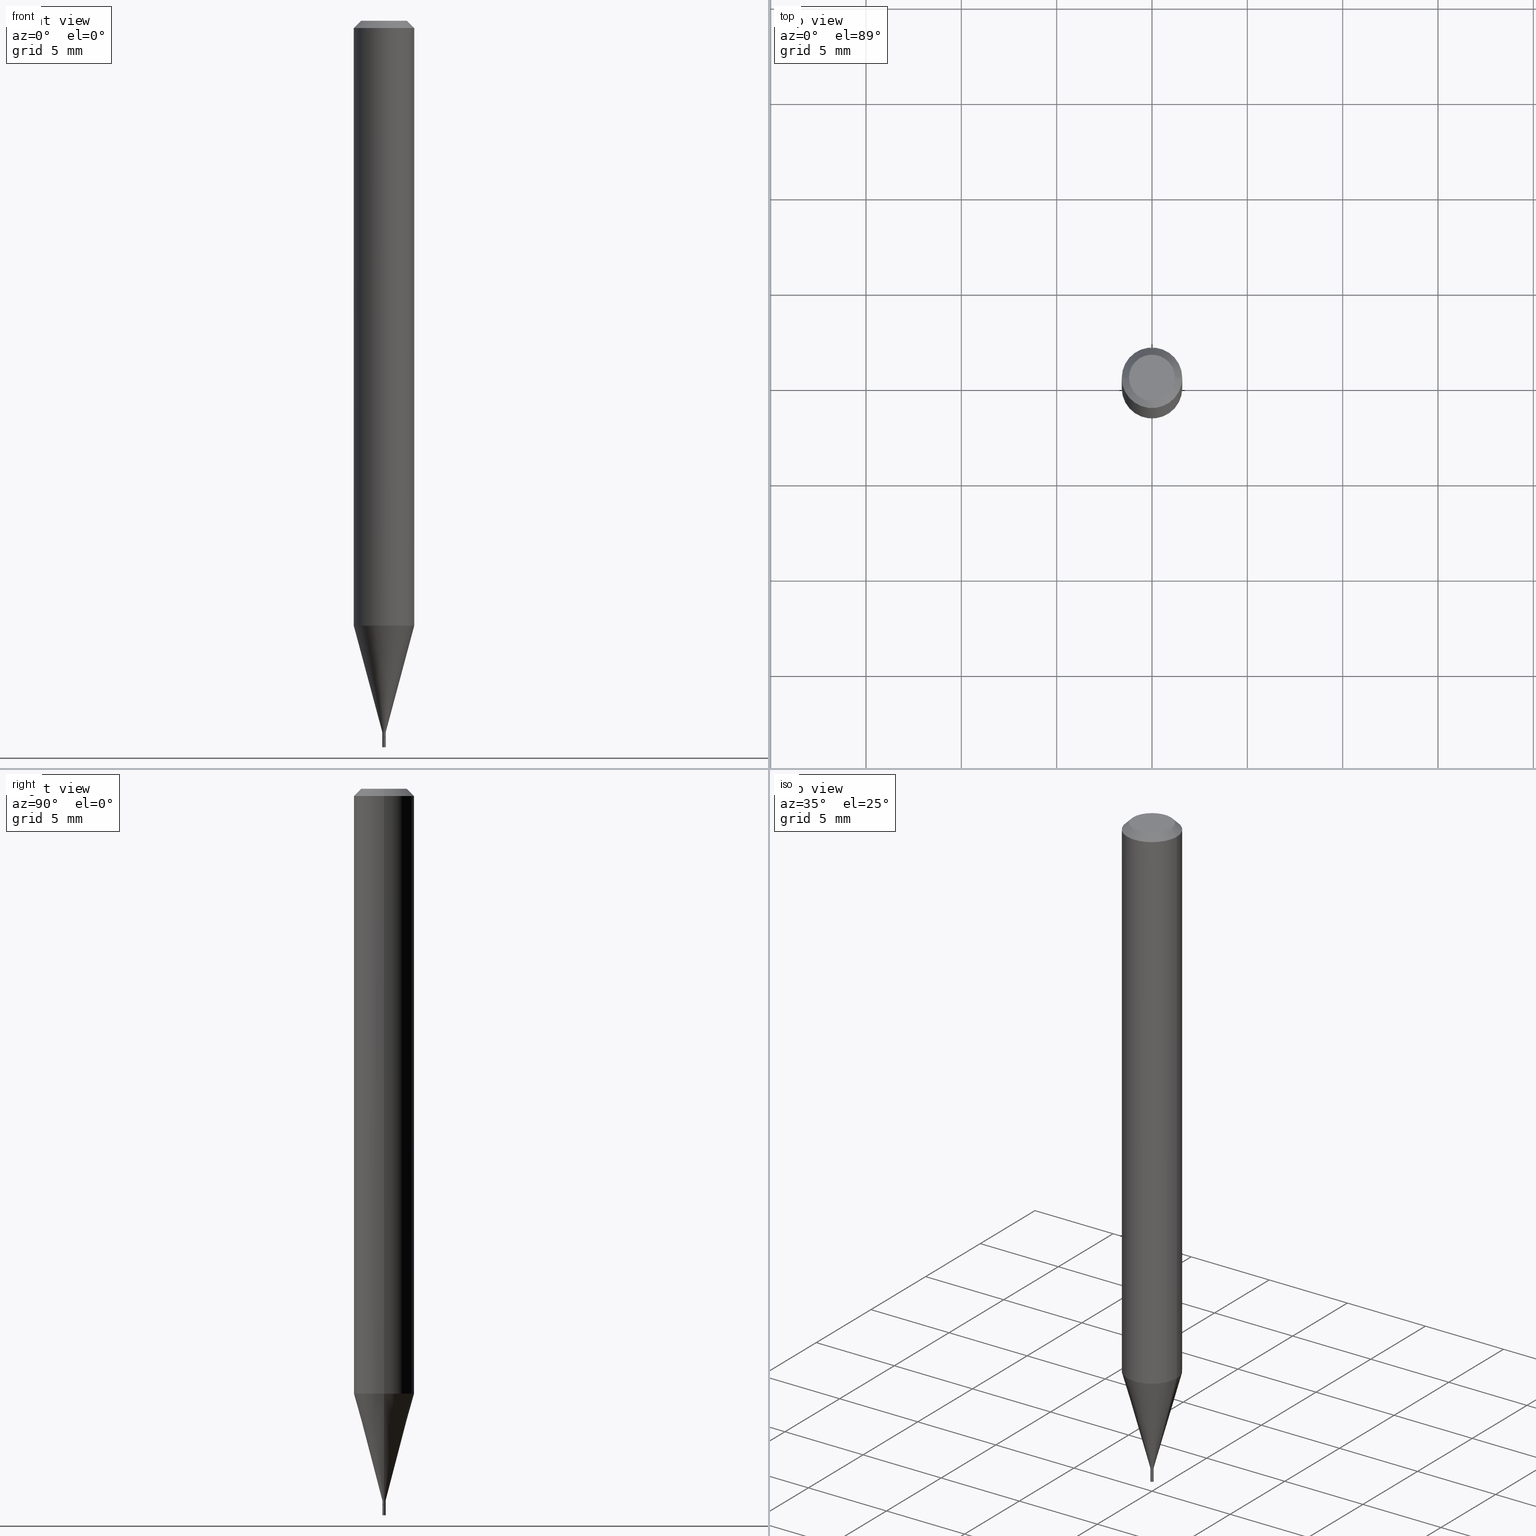
[diagram: canonical four-view strip — front | top / right | iso, engineering-drawing reading convention]
A machine part, canonical four-view strip (front | top / right | iso — engineering-drawing reading convention). The complete STEP part file that produces these views, byte-faithful:
ISO-10303-21;
HEADER;
FILE_DESCRIPTION (( 'STEP AP203' ),
    '1' );
FILE_NAME ('02277.STEP',
    '2024-03-18T19:59:58',
    ( '' ),
    ( '' ),
    'SwSTEP 2.0',
    'SolidWorks 2023',
    '' );
FILE_SCHEMA (( 'CONFIG_CONTROL_DESIGN' ));
ENDSEC;

DATA;
#1 = SECURITY_CLASSIFICATION_LEVEL ( 'unclassified' ) ;
#2 = CARTESIAN_POINT ( 'NONE',  ( 3.616848364347817323E-29, -5.163900900149012660E-15, -1.479000000000000092 ) ) ;
#3 = CLOSED_SHELL ( 'NONE', ( #387, #457, #172, #311 ) ) ;
#4 = EDGE_CURVE ( 'NONE', #46, #22, #202, .T. ) ;
#5 = CIRCLE ( 'NONE', #188, 0.06250000000000000000 ) ;
#6 = LOCAL_TIME ( 15, 59, 58.00000000000000000, #356 ) ;
#7 = DATE_AND_TIME ( #461, #295 ) ;
#8 = DIRECTION ( 'NONE',  ( 1.000000000000000000, -6.982962677686266711E-15, 4.876176775795935793E-29 ) ) ;
#9 = CARTESIAN_POINT ( 'NONE',  ( -0.003500000000000000507, -5.175692458455261890E-15, -1.479000000000000092 ) ) ;
#10 = ORIENTED_EDGE ( 'NONE', *, *, #278, .F. ) ;
#11 = DIRECTION ( 'NONE',  ( -2.445468806185136597E-29, 3.491481338843145583E-15, 1.000000000000000000 ) ) ;
#12 = ORIENTED_EDGE ( 'NONE', *, *, #222, .T. ) ;
#13 = CONICAL_SURFACE ( 'NONE', #393, 0.003499999999999922010, 0.2617993877991500740 ) ;
#14 = VECTOR ( 'NONE', #62, 39.37007874015748143 ) ;
#15 = DIRECTION ( 'NONE',  ( -0.7071067811865645591, 7.493145998870415691E-15, 0.7071067811865304753 ) ) ;
#16 = PRODUCT_DEFINITION_SHAPE ( 'NONE', 'NONE',  #89 ) ;
#17 = APPROVAL ( #286, 'UNSPECIFIED' ) ;
#18 = DIRECTION ( 'NONE',  ( -1.000000000000000000, 6.982962677686265922E-15, -4.876176775795935793E-29 ) ) ;
#19 = ORIENTED_EDGE ( 'NONE', *, *, #228, .T. ) ;
#20 = FACE_OUTER_BOUND ( 'NONE', #123, .T. ) ;
#21 = ORIENTED_EDGE ( 'NONE', *, *, #350, .T. ) ;
#22 = VERTEX_POINT ( 'NONE', #200 ) ;
#23 = DIRECTION ( 'NONE',  ( 1.000000000000000000, -6.982962677686266711E-15, 0.000000000000000000 ) ) ;
#24 = CC_DESIGN_DATE_AND_TIME_ASSIGNMENT ( #33, #40, ( #272 ) ) ;
#25 = ORIENTED_EDGE ( 'NONE', *, *, #97, .T. ) ;
#26 = EDGE_CURVE ( 'NONE', #413, #46, #168, .T. ) ;
#27 =( NAMED_UNIT ( * ) PLANE_ANGLE_UNIT ( ) SI_UNIT ( $, .RADIAN. ) );
#28 = EDGE_LOOP ( 'NONE', ( #10, #297, #292, #207 ) ) ;
#29 = AXIS2_PLACEMENT_3D ( 'NONE', #118, #317, #355 ) ;
#30 = AXIS2_PLACEMENT_3D ( 'NONE', #131, #195, #86 ) ;
#31 = PERSON_AND_ORGANIZATION_ROLE ( 'design_owner' ) ;
#32 = ADVANCED_FACE ( 'NONE', ( #451 ), #34, .T. ) ;
#33 = DATE_AND_TIME ( #288, #263 ) ;
#34 = CONICAL_SURFACE ( 'NONE', #270, 0.003000000000000000496, 0.7853981633974723708 ) ;
#35 = DIRECTION ( 'NONE',  ( -2.445468806185136597E-29, 3.491481338843145583E-15, 1.000000000000000000 ) ) ;
#36 =( GEOMETRIC_REPRESENTATION_CONTEXT ( 3 ) GLOBAL_UNCERTAINTY_ASSIGNED_CONTEXT ( ( #70 ) ) GLOBAL_UNIT_ASSIGNED_CONTEXT ( ( #108, #27, #140 ) ) REPRESENTATION_CONTEXT ( 'NONE', 'WORKASPACE' ) );
#37 = CC_DESIGN_APPROVAL ( #276, ( #102 ) ) ;
#38 = APPLICATION_PROTOCOL_DEFINITION ( 'international standard', 'config_control_design', 1994, #399 ) ;
#39 = CARTESIAN_POINT ( 'NONE',  ( -0.04749999999999999362, 3.578768372314182896E-16, -1.582279719538970160E-15 ) ) ;
#40 = DATE_TIME_ROLE ( 'classification_date' ) ;
#41 = FACE_OUTER_BOUND ( 'NONE', #190, .T. ) ;
#42 = EDGE_LOOP ( 'NONE', ( #358, #240, #332, #404 ) ) ;
#43 = CALENDAR_DATE ( 2024, 18, 3 ) ;
#44 = LINE ( 'NONE', #323, #109 ) ;
#45 = CONICAL_SURFACE ( 'NONE', #363, 0.06250000000000000000, 0.7853981633975011256 ) ;
#46 = VERTEX_POINT ( 'NONE', #221 ) ;
#47 = DIRECTION ( 'NONE',  ( -2.445468806185136877E-29, 3.491481338843145188E-15, 1.000000000000000000 ) ) ;
#48 = LINE ( 'NONE', #96, #255 ) ;
#49 = CARTESIAN_POINT ( 'NONE',  ( 0.000000000000000000, 0.000000000000000000, 0.000000000000000000 ) ) ;
#50 = EDGE_CURVE ( 'NONE', #435, #22, #125, .T. ) ;
#51 = VERTEX_POINT ( 'NONE', #252 ) ;
#52 = EDGE_CURVE ( 'NONE', #458, #324, #184, .T. ) ;
#53 = DIRECTION ( 'NONE',  ( 1.000000000000000000, -6.982962677686347174E-15, 0.000000000000000000 ) ) ;
#54 = ORIENTED_EDGE ( 'NONE', *, *, #350, .F. ) ;
#55 = DIRECTION ( 'NONE',  ( -2.445468806185136597E-29, 3.491481338843145583E-15, 1.000000000000000000 ) ) ;
#56 = ADVANCED_FACE ( 'NONE', ( #41 ), #429, .T. ) ;
#57 = ORIENTED_EDGE ( 'NONE', *, *, #147, .F. ) ;
#58 = FACE_OUTER_BOUND ( 'NONE', #160, .T. ) ;
#59 = ORIENTED_EDGE ( 'NONE', *, *, #386, .T. ) ;
#60 = AXIS2_PLACEMENT_3D ( 'NONE', #383, #64, #208 ) ;
#61 = APPROVAL_PERSON_ORGANIZATION ( #257, #276, #253 ) ;
#62 = DIRECTION ( 'NONE',  ( -2.445468806185136877E-29, 3.491481338843145188E-15, 1.000000000000000000 ) ) ;
#63 = ORIENTED_EDGE ( 'NONE', *, *, #269, .T. ) ;
#64 = DIRECTION ( 'NONE',  ( 0.000000000000000000, 0.000000000000000000, 1.000000000000000000 ) ) ;
#65 = ORIENTED_EDGE ( 'NONE', *, *, #228, .F. ) ;
#66 =( LENGTH_UNIT ( ) NAMED_UNIT ( * ) SI_UNIT ( $, .METRE. ) );
#67 = AXIS2_PLACEMENT_3D ( 'NONE', #186, #352, #289 ) ;
#68 = DIRECTION ( 'NONE',  ( 1.000000000000000000, -6.982962677686266711E-15, 4.876176775795935232E-29 ) ) ;
#69 = AXIS2_PLACEMENT_3D ( 'NONE', #274, #163, #167 ) ;
#70 = UNCERTAINTY_MEASURE_WITH_UNIT (LENGTH_MEASURE( 1.000000000000000082E-05 ), #108, 'distance_accuracy_value', 'NONE');
#71 = CARTESIAN_POINT ( 'NONE',  ( -0.003500000000000000507, 2.486899575160351010E-17, -1.721627281589217151E-31 ) ) ;
#72 = APPROVAL_DATE_TIME ( #7, #74 ) ;
#73 = DIRECTION ( 'NONE',  ( -2.445468806185136877E-29, 3.491481338843145188E-15, 1.000000000000000000 ) ) ;
#74 = APPROVAL ( #312, 'UNSPECIFIED' ) ;
#75 = DIRECTION ( 'NONE',  ( -2.445468806185136597E-29, 3.491481338843145583E-15, 1.000000000000000000 ) ) ;
#76 = VECTOR ( 'NONE', #203, 39.37007874015748143 ) ;
#77 = ADVANCED_FACE ( 'NONE', ( #79 ), #13, .T. ) ;
#78 = DATE_AND_TIME ( #117, #6 ) ;
#79 = FACE_OUTER_BOUND ( 'NONE', #42, .T. ) ;
#80 = ORIENTED_EDGE ( 'NONE', *, *, #431, .T. ) ;
#81 = DIRECTION ( 'NONE',  ( 1.000000000000000000, -6.982962677686267499E-15, 5.108144071313017768E-29 ) ) ;
#82 = CYLINDRICAL_SURFACE ( 'NONE', #83, 0.003500000000000000507 ) ;
#83 = AXIS2_PLACEMENT_3D ( 'NONE', #402, #254, #357 ) ;
#84 = AXIS2_PLACEMENT_3D ( 'NONE', #227, #189, #360 ) ;
#85 = ORIENTED_EDGE ( 'NONE', *, *, #447, .F. ) ;
#86 = DIRECTION ( 'NONE',  ( 1.000000000000000000, -6.982962677686349541E-15, 0.000000000000000000 ) ) ;
#87 = DIRECTION ( 'NONE',  ( 1.000000000000000000, -6.982962677686266711E-15, 4.876176775795935793E-29 ) ) ;
#88 = VERTEX_POINT ( 'NONE', #464 ) ;
#89 = PRODUCT_DEFINITION ( 'UNKNOWN', '', #102, #409 ) ;
#90 = CARTESIAN_POINT ( 'NONE',  ( 3.053923460138509831E-29, -4.360193327496349299E-15, -1.248809002353436615 ) ) ;
#91 = ORIENTED_EDGE ( 'NONE', *, *, #278, .T. ) ;
#92 = AXIS2_PLACEMENT_3D ( 'NONE', #243, #343, #452 ) ;
#93 = CC_DESIGN_APPROVAL ( #17, ( #272 ) ) ;
#94 = CARTESIAN_POINT ( 'NONE',  ( 3.668203209277704895E-29, -5.237222008264718177E-15, -1.500000000000000222 ) ) ;
#95 = ORIENTED_EDGE ( 'NONE', *, *, #222, .F. ) ;
#96 = CARTESIAN_POINT ( 'NONE',  ( -0.003000000000000000496, -5.142584618076209636E-15, -1.479000000000000092 ) ) ;
#97 = EDGE_CURVE ( 'NONE', #230, #408, #149, .T. ) ;
#98 = VERTEX_POINT ( 'NONE', #9 ) ;
#99 = DIRECTION ( 'NONE',  ( -2.445468806185136597E-29, 3.491481338843145583E-15, 1.000000000000000000 ) ) ;
#100 = EDGE_LOOP ( 'NONE', ( #95, #141, #264, #85 ) ) ;
#101 = AXIS2_PLACEMENT_3D ( 'NONE', #260, #191, #8 ) ;
#102 = PRODUCT_DEFINITION_FORMATION_WITH_SPECIFIED_SOURCE ( 'ANY', '', #234, .NOT_KNOWN. ) ;
#103 = DIRECTION ( 'NONE',  ( -2.438088387897960049E-29, 3.491481338843145188E-15, 1.000000000000000000 ) ) ;
#104 = ORIENTED_EDGE ( 'NONE', *, *, #411, .F. ) ;
#105 = MECHANICAL_CONTEXT ( 'NONE', #428, 'mechanical' ) ;
#106 = CC_DESIGN_PERSON_AND_ORGANIZATION_ASSIGNMENT ( #249, #31, ( #234 ) ) ;
#107 = CARTESIAN_POINT ( 'NONE',  ( -0.06250000000000000000, -1.762193563939435770E-15, -0.01499999999999999944 ) ) ;
#108 =( CONVERSION_BASED_UNIT ( 'INCH', #305 ) LENGTH_UNIT ( ) NAMED_UNIT ( #133 ) );
#109 = VECTOR ( 'NONE', #47, 39.37007874015748143 ) ;
#110 = CARTESIAN_POINT ( 'NONE',  ( 3.668203209277705088E-31, -5.237222008264718399E-17, -0.01499999999999999944 ) ) ;
#111 = CARTESIAN_POINT ( 'NONE',  ( 3.053923460138509831E-29, -4.360193327496349299E-15, -1.248809002353436615 ) ) ;
#112 = APPROVAL_STATUS ( 'not_yet_approved' ) ;
#113 = AXIS2_PLACEMENT_3D ( 'NONE', #248, #423, #68 ) ;
#114 = DIRECTION ( 'NONE',  ( 1.000000000000000000, -6.982962677686270655E-15, 0.000000000000000000 ) ) ;
#115 = AXIS2_PLACEMENT_3D ( 'NONE', #49, #199, #333 ) ;
#116 = ADVANCED_BREP_SHAPE_REPRESENTATION ( '02277', ( #400, #390, #60 ), #36 ) ;
#117 = CALENDAR_DATE ( 2024, 18, 3 ) ;
#118 = CARTESIAN_POINT ( 'NONE',  ( 3.668203209277705088E-31, -5.237222008264718399E-17, -0.01499999999999999944 ) ) ;
#119 = ORIENTED_EDGE ( 'NONE', *, *, #209, .F. ) ;
#120 = EDGE_CURVE ( 'NONE', #324, #416, #236, .T. ) ;
#121 = PERSON_AND_ORGANIZATION ( #247, #462 ) ;
#122 = DIRECTION ( 'NONE',  ( -2.445468806185136597E-29, 3.491481338843145583E-15, 1.000000000000000000 ) ) ;
#123 = EDGE_LOOP ( 'NONE', ( #65, #439 ) ) ;
#124 = DIRECTION ( 'NONE',  ( -2.445468806185136877E-29, 3.491481338843145188E-15, 1.000000000000000000 ) ) ;
#125 = CIRCLE ( 'NONE', #67, 0.003499999999999922010 ) ;
#126 = CC_DESIGN_APPROVAL ( #74, ( #89 ) ) ;
#127 = CC_DESIGN_SECURITY_CLASSIFICATION ( #272, ( #102 ) ) ;
#128 = CARTESIAN_POINT ( 'NONE',  ( -0.003499999999999922010, -5.104117091008977877E-15, -1.469000000000000083 ) ) ;
#129 = CC_DESIGN_PERSON_AND_ORGANIZATION_ASSIGNMENT ( #463, #465, ( #102 ) ) ;
#130 = EDGE_CURVE ( 'NONE', #339, #98, #455, .T. ) ;
#131 = CARTESIAN_POINT ( 'NONE',  ( 3.592393676285966338E-29, -5.128986086760581011E-15, -1.469000000000000083 ) ) ;
#132 = ORIENTED_EDGE ( 'NONE', *, *, #52, .F. ) ;
#133 = DIMENSIONAL_EXPONENTS ( 1.000000000000000000, 0.000000000000000000, 0.000000000000000000, 0.000000000000000000, 0.000000000000000000, 0.000000000000000000, 0.000000000000000000 ) ;
#134 = DIRECTION ( 'NONE',  ( -2.438088387897960049E-29, 3.491481338843145188E-15, 1.000000000000000000 ) ) ;
#135 = VERTEX_POINT ( 'NONE', #39 ) ;
#136 = CIRCLE ( 'NONE', #372, 0.003500000000000000507 ) ;
#137 = CARTESIAN_POINT ( 'NONE',  ( 2.444036937193810177E-17, 0.003499999999994836668, -1.479000000000000092 ) ) ;
#138 = ORIENTED_EDGE ( 'NONE', *, *, #411, .T. ) ;
#139 = ORIENTED_EDGE ( 'NONE', *, *, #147, .T. ) ;
#140 =( NAMED_UNIT ( * ) SI_UNIT ( $, .STERADIAN. ) SOLID_ANGLE_UNIT ( ) );
#141 = ORIENTED_EDGE ( 'NONE', *, *, #347, .T. ) ;
#142 = AXIS2_PLACEMENT_3D ( 'NONE', #298, #266, #331 ) ;
#143 = APPLICATION_PROTOCOL_DEFINITION ( 'international standard', 'config_control_design', 1994, #428 ) ;
#144 = ADVANCED_FACE ( 'NONE', ( #182 ), #45, .T. ) ;
#145 = EDGE_LOOP ( 'NONE', ( #273, #318 ) ) ;
#146 = CARTESIAN_POINT ( 'NONE',  ( -0.06250000000000001388, -3.916104117646285894E-15, -1.248809002353436615 ) ) ;
#147 = EDGE_CURVE ( 'NONE', #51, #435, #392, .T. ) ;
#148 = FACE_OUTER_BOUND ( 'NONE', #329, .T. ) ;
#149 = CIRCLE ( 'NONE', #196, 0.06250000000000000000 ) ;
#150 = AXIS2_PLACEMENT_3D ( 'NONE', #137, #437, #18 ) ;
#151 = PERSON_AND_ORGANIZATION ( #247, #462 ) ;
#152 = CARTESIAN_POINT ( 'NONE',  ( 3.616848364347817323E-29, -5.163900900149012660E-15, -1.479000000000000092 ) ) ;
#153 = DIRECTION ( 'NONE',  ( -2.445468806185136597E-29, 3.491481338843145583E-15, 1.000000000000000000 ) ) ;
#154 = SHAPE_DEFINITION_REPRESENTATION ( #16, #116 ) ;
#155 = CIRCLE ( 'NONE', #456, 0.003500000000000000507 ) ;
#156 = CARTESIAN_POINT ( 'NONE',  ( 3.616848364347817323E-29, -5.163900900149012660E-15, -1.479000000000000092 ) ) ;
#157 = DATE_AND_TIME ( #349, #381 ) ;
#158 = DIRECTION ( 'NONE',  ( 1.000000000000000000, -6.982962677686192558E-15, 0.000000000000000000 ) ) ;
#159 = DIRECTION ( 'NONE',  ( 1.000000000000000000, -6.982962677686331397E-15, 0.000000000000000000 ) ) ;
#160 = EDGE_LOOP ( 'NONE', ( #454, #192 ) ) ;
#161 = FACE_OUTER_BOUND ( 'NONE', #242, .T. ) ;
#162 = AXIS2_PLACEMENT_3D ( 'NONE', #177, #341, #23 ) ;
#163 = DIRECTION ( 'NONE',  ( -2.445468806185136597E-29, 3.491481338843145583E-15, 1.000000000000000000 ) ) ;
#164 = CARTESIAN_POINT ( 'NONE',  ( -0.06250000000000000000, 3.840629472727444916E-16, -0.01499999999999999944 ) ) ;
#165 = CARTESIAN_POINT ( 'NONE',  ( 0.003000000000000000496, -5.184849788182071492E-15, -1.479000000000000092 ) ) ;
#166 = CC_DESIGN_DATE_AND_TIME_ASSIGNMENT ( #157, #226, ( #89 ) ) ;
#167 = DIRECTION ( 'NONE',  ( 1.000000000000000000, -6.982962677686192558E-15, 0.000000000000000000 ) ) ;
#168 = LINE ( 'NONE', #165, #313 ) ;
#169 = DIRECTION ( 'NONE',  ( -2.445468806185136597E-29, 3.491481338843145583E-15, 1.000000000000000000 ) ) ;
#170 = DIRECTION ( 'NONE',  ( -2.445468806185136597E-29, 3.491481338843145583E-15, 1.000000000000000000 ) ) ;
#171 = EDGE_LOOP ( 'NONE', ( #19, #91, #306, #422 ) ) ;
#172 = ADVANCED_FACE ( 'NONE', ( #224 ), #82, .T. ) ;
#173 = DIRECTION ( 'NONE',  ( -2.445468806185136877E-29, 3.491481338843145188E-15, 1.000000000000000000 ) ) ;
#174 = VECTOR ( 'NONE', #173, 39.37007874015748143 ) ;
#175 = CIRCLE ( 'NONE', #440, 0.003499999999999923311 ) ;
#176 = CARTESIAN_POINT ( 'NONE',  ( 0.003500000000000000507, -5.261662377636620016E-15, -1.500000000000000222 ) ) ;
#177 = CARTESIAN_POINT ( 'NONE',  ( 3.668203209277705088E-31, -5.237222008264718399E-17, -0.01499999999999999944 ) ) ;
#178 = COORDINATED_UNIVERSAL_TIME_OFFSET ( 5, 0, .BEHIND. ) ;
#179 = CC_DESIGN_PERSON_AND_ORGANIZATION_ASSIGNMENT ( #223, #397, ( #102 ) ) ;
#180 = COORDINATED_UNIVERSAL_TIME_OFFSET ( 5, 0, .BEHIND. ) ;
#181 = CONICAL_SURFACE ( 'NONE', #211, 0.003000000000000000496, 0.7853981633974723708 ) ;
#182 = FACE_OUTER_BOUND ( 'NONE', #384, .T. ) ;
#183 = PERSON_AND_ORGANIZATION ( #247, #462 ) ;
#184 = LINE ( 'NONE', #315, #217 ) ;
#185 = ADVANCED_FACE ( 'NONE', ( #424 ), #181, .T. ) ;
#186 = CARTESIAN_POINT ( 'NONE',  ( 3.592393676285966338E-29, -5.128986086760581011E-15, -1.469000000000000083 ) ) ;
#187 = PERSON_AND_ORGANIZATION_ROLE ( 'classification_officer' ) ;
#188 = AXIS2_PLACEMENT_3D ( 'NONE', #90, #442, #335 ) ;
#189 = DIRECTION ( 'NONE',  ( 2.438088387897960049E-29, -3.491481338843145188E-15, -1.000000000000000000 ) ) ;
#190 = EDGE_LOOP ( 'NONE', ( #57, #382, #342, #309 ) ) ;
#191 = DIRECTION ( 'NONE',  ( -2.445468806185136597E-29, 3.491481338843145583E-15, 1.000000000000000000 ) ) ;
#192 = ORIENTED_EDGE ( 'NONE', *, *, #209, .T. ) ;
#193 = LINE ( 'NONE', #444, #414 ) ;
#194 = EDGE_CURVE ( 'NONE', #302, #413, #405, .T. ) ;
#195 = DIRECTION ( 'NONE',  ( -2.445468806185136597E-29, 3.491481338843145583E-15, 1.000000000000000000 ) ) ;
#196 = AXIS2_PLACEMENT_3D ( 'NONE', #111, #35, #114 ) ;
#197 = CIRCLE ( 'NONE', #92, 0.04749999999999999362 ) ;
#198 = ORIENTED_EDGE ( 'NONE', *, *, #214, .F. ) ;
#199 = DIRECTION ( 'NONE',  ( -2.445468806185136597E-29, 3.491481338843145583E-15, 1.000000000000000000 ) ) ;
#200 = CARTESIAN_POINT ( 'NONE',  ( 0.003499999999999922010, -5.153426456132482850E-15, -1.469000000000000083 ) ) ;
#201 = FACE_OUTER_BOUND ( 'NONE', #277, .T. ) ;
#202 = LINE ( 'NONE', #374, #174 ) ;
#203 = DIRECTION ( 'NONE',  ( -2.445468806185136877E-29, 3.491481338843145188E-15, 1.000000000000000000 ) ) ;
#204 = ORIENTED_EDGE ( 'NONE', *, *, #214, .T. ) ;
#205 = APPROVAL_PERSON_ORGANIZATION ( #121, #17, #215 ) ;
#206 = DIRECTION ( 'NONE',  ( 0.2588190451025213501, 1.565188264969621968E-15, 0.9659258262890682012 ) ) ;
#207 = ORIENTED_EDGE ( 'NONE', *, *, #362, .F. ) ;
#208 = DIRECTION ( 'NONE',  ( 1.000000000000000000, 0.000000000000000000, 0.000000000000000000 ) ) ;
#209 = EDGE_CURVE ( 'NONE', #98, #339, #155, .T. ) ;
#210 = ORIENTED_EDGE ( 'NONE', *, *, #431, .F. ) ;
#211 = AXIS2_PLACEMENT_3D ( 'NONE', #2, #153, #229 ) ;
#212 = CARTESIAN_POINT ( 'NONE',  ( 3.576687321579069994E-29, -5.368277968210015545E-15, -1.500000000000000222 ) ) ;
#213 = FACE_OUTER_BOUND ( 'NONE', #145, .T. ) ;
#214 = EDGE_CURVE ( 'NONE', #458, #135, #245, .T. ) ;
#215 = APPROVAL_ROLE ( '' ) ;
#216 = PLANE ( 'NONE',  #84 ) ;
#217 = VECTOR ( 'NONE', #316, 39.37007874015748143 ) ;
#218 = PERSON_AND_ORGANIZATION_ROLE ( 'creator' ) ;
#219 = AXIS2_PLACEMENT_3D ( 'NONE', #212, #103, #284 ) ;
#220 = ADVANCED_FACE ( 'NONE', ( #365 ), #216, .F. ) ;
#221 = CARTESIAN_POINT ( 'NONE',  ( 0.003499999999999923311, -5.186595528851492996E-15, -1.478500000000000147 ) ) ;
#222 = EDGE_CURVE ( 'NONE', #408, #416, #44, .T. ) ;
#223 = PERSON_AND_ORGANIZATION ( #247, #462 ) ;
#224 = FACE_OUTER_BOUND ( 'NONE', #279, .T. ) ;
#225 = ORIENTED_EDGE ( 'NONE', *, *, #441, .T. ) ;
#226 = DATE_TIME_ROLE ( 'creation_date' ) ;
#227 = CARTESIAN_POINT ( 'NONE',  ( 3.316907271900976096E-16, 0.04749999999999999362, -9.569852233645332438E-16 ) ) ;
#228 = EDGE_CURVE ( 'NONE', #413, #302, #346, .T. ) ;
#229 = DIRECTION ( 'NONE',  ( 1.000000000000000000, -6.982962677686331397E-15, 0.000000000000000000 ) ) ;
#230 = VERTEX_POINT ( 'NONE', #417 ) ;
#231 = DIRECTION ( 'NONE',  ( -2.445468806185136597E-29, 3.491481338843145583E-15, 1.000000000000000000 ) ) ;
#232 = ORIENTED_EDGE ( 'NONE', *, *, #120, .T. ) ;
#233 = CARTESIAN_POINT ( 'NONE',  ( 0.000000000000000000, 0.000000000000000000, 0.000000000000000000 ) ) ;
#234 = PRODUCT ( '02277', '02277', '', ( #105 ) ) ;
#235 = DIRECTION ( 'NONE',  ( -0.7071067811865848762, 2.468850131082647941E-15, -0.7071067811865101582 ) ) ;
#236 = CIRCLE ( 'NONE', #29, 0.06250000000000000000 ) ;
#237 = VECTOR ( 'NONE', #373, 39.37007874015747433 ) ;
#238 = EDGE_LOOP ( 'NONE', ( #80, #204 ) ) ;
#239 = CARTESIAN_POINT ( 'NONE',  ( 0.000000000000000000, 0.000000000000000000, 0.000000000000000000 ) ) ;
#240 = ORIENTED_EDGE ( 'NONE', *, *, #50, .T. ) ;
#241 = DIRECTION ( 'NONE',  ( 1.000000000000000000, -6.982962677686266711E-15, 4.876176775795935793E-29 ) ) ;
#242 = EDGE_LOOP ( 'NONE', ( #25, #12, #419, #368 ) ) ;
#243 = CARTESIAN_POINT ( 'NONE',  ( 3.869415696791911762E-44, -5.524500113600271674E-30, -1.582279719538967596E-15 ) ) ;
#244 = ORIENTED_EDGE ( 'NONE', *, *, #4, .F. ) ;
#245 = CIRCLE ( 'NONE', #271, 0.04749999999999999362 ) ;
#246 = ORIENTED_EDGE ( 'NONE', *, *, #97, .F. ) ;
#247 = PERSON ( 'UNSPECIFIED', 'UNSPECIFIED', 'UNSPECIFIED', ('UNSPECIFIED'), ('UNSPECIFIED'), ('UNSPECIFIED') ) ;
#248 = CARTESIAN_POINT ( 'NONE',  ( 0.000000000000000000, 0.000000000000000000, 0.000000000000000000 ) ) ;
#249 = PERSON_AND_ORGANIZATION ( #247, #462 ) ;
#250 = VECTOR ( 'NONE', #73, 39.37007874015748143 ) ;
#251 = AXIS2_PLACEMENT_3D ( 'NONE', #380, #99, #420 ) ;
#252 = CARTESIAN_POINT ( 'NONE',  ( -0.003499999999999923311, -5.137286163727988811E-15, -1.478500000000000147 ) ) ;
#253 = APPROVAL_ROLE ( '' ) ;
#254 = DIRECTION ( 'NONE',  ( -2.445468806185136597E-29, 3.491481338843145583E-15, 1.000000000000000000 ) ) ;
#255 = VECTOR ( 'NONE', #15, 39.37007874015748143 ) ;
#256 = DIRECTION ( 'NONE',  ( -2.445468806185136597E-29, 3.491481338843145583E-15, 1.000000000000000000 ) ) ;
#257 = PERSON_AND_ORGANIZATION ( #247, #462 ) ;
#258 = DIRECTION ( 'NONE',  ( -2.445468806185136597E-29, 3.491481338843145583E-15, 1.000000000000000000 ) ) ;
#259 = PERSON_AND_ORGANIZATION ( #247, #462 ) ;
#260 = CARTESIAN_POINT ( 'NONE',  ( 0.000000000000000000, 0.000000000000000000, 0.000000000000000000 ) ) ;
#261 = VECTOR ( 'NONE', #235, 39.37007874015748143 ) ;
#262 = CARTESIAN_POINT ( 'NONE',  ( 0.003500000000000000507, -5.188341269520914499E-15, -1.479000000000000092 ) ) ;
#263 = LOCAL_TIME ( 15, 59, 58.00000000000000000, #351 ) ;
#264 = ORIENTED_EDGE ( 'NONE', *, *, #322, .T. ) ;
#265 = PLANE ( 'NONE',  #150 ) ;
#266 = DIRECTION ( 'NONE',  ( 2.445468806185136597E-29, -3.491481338843145583E-15, -1.000000000000000000 ) ) ;
#267 = EDGE_LOOP ( 'NONE', ( #198, #453, #232, #54 ) ) ;
#268 = CARTESIAN_POINT ( 'NONE',  ( 0.06250000000000000000, -4.888073874380388472E-16, -0.01499999999999999944 ) ) ;
#269 = EDGE_CURVE ( 'NONE', #445, #339, #296, .T. ) ;
#270 = AXIS2_PLACEMENT_3D ( 'NONE', #448, #170, #275 ) ;
#271 = AXIS2_PLACEMENT_3D ( 'NONE', #398, #75, #81 ) ;
#272 = SECURITY_CLASSIFICATION ( '', '', #1 ) ;
#273 = ORIENTED_EDGE ( 'NONE', *, *, #290, .F. ) ;
#274 = CARTESIAN_POINT ( 'NONE',  ( 3.668203209277704895E-29, -5.237222008264718177E-15, -1.500000000000000222 ) ) ;
#275 = DIRECTION ( 'NONE',  ( 1.000000000000000000, -6.982962677686331397E-15, 0.000000000000000000 ) ) ;
#276 = APPROVAL ( #112, 'UNSPECIFIED' ) ;
#277 = EDGE_LOOP ( 'NONE', ( #138, #336, #246, #326 ) ) ;
#278 = EDGE_CURVE ( 'NONE', #302, #51, #48, .T. ) ;
#279 = EDGE_LOOP ( 'NONE', ( #334, #59, #63, #119 ) ) ;
#280 = CIRCLE ( 'NONE', #364, 0.003499999999999923311 ) ;
#281 = PLANE ( 'NONE',  #219 ) ;
#282 = DIRECTION ( 'NONE',  ( -2.445468806185136597E-29, 3.491481338843145583E-15, 1.000000000000000000 ) ) ;
#283 = ADVANCED_FACE ( 'NONE', ( #201 ), #426, .T. ) ;
#284 = DIRECTION ( 'NONE',  ( 1.000000000000000000, -6.982962677686265922E-15, 4.876176775795935793E-29 ) ) ;
#285 = AXIS2_PLACEMENT_3D ( 'NONE', #233, #327, #241 ) ;
#286 = APPROVAL_STATUS ( 'not_yet_approved' ) ;
#287 = DIRECTION ( 'NONE',  ( -1.000000000000000000, 6.982962677686266711E-15, 0.000000000000000000 ) ) ;
#288 = CALENDAR_DATE ( 2024, 18, 3 ) ;
#289 = DIRECTION ( 'NONE',  ( 1.000000000000000000, -6.982962677686349541E-15, 0.000000000000000000 ) ) ;
#290 = EDGE_CURVE ( 'NONE', #445, #88, #449, .T. ) ;
#291 = DIRECTION ( 'NONE',  ( -2.445468806185136597E-29, 3.491481338843145583E-15, 1.000000000000000000 ) ) ;
#292 = ORIENTED_EDGE ( 'NONE', *, *, #26, .T. ) ;
#293 = CARTESIAN_POINT ( 'NONE',  ( 3.616848364347817323E-29, -5.163900900149012660E-15, -1.479000000000000092 ) ) ;
#294 = FACE_OUTER_BOUND ( 'NONE', #100, .T. ) ;
#295 = LOCAL_TIME ( 15, 59, 58.00000000000000000, #178 ) ;
#296 = LINE ( 'NONE', #299, #76 ) ;
#297 = ORIENTED_EDGE ( 'NONE', *, *, #194, .T. ) ;
#298 = CARTESIAN_POINT ( 'NONE',  ( 3.668203209277705088E-31, -5.237222008264718399E-17, -0.01499999999999999944 ) ) ;
#299 = CARTESIAN_POINT ( 'NONE',  ( 0.003500000000000000507, -2.444036937190193743E-17, 1.706661871528577676E-31 ) ) ;
#300 = DIRECTION ( 'NONE',  ( 0.7071067811865645591, -2.468850131082435343E-15, 0.7071067811865304753 ) ) ;
#301 = CARTESIAN_POINT ( 'NONE',  ( 3.616848364347817323E-29, -5.163900900149012660E-15, -1.479000000000000092 ) ) ;
#302 = VERTEX_POINT ( 'NONE', #450 ) ;
#303 = CARTESIAN_POINT ( 'NONE',  ( 0.04749999999999999362, -4.035134999187605740E-16, -1.582279719538965032E-15 ) ) ;
#304 = ORIENTED_EDGE ( 'NONE', *, *, #290, .T. ) ;
#305 = LENGTH_MEASURE_WITH_UNIT ( LENGTH_MEASURE( 0.02539999999999999897 ), #66 );
#306 = ORIENTED_EDGE ( 'NONE', *, *, #441, .F. ) ;
#307 = CARTESIAN_POINT ( 'NONE',  ( 3.615625629944724521E-29, -5.162155159479591157E-15, -1.478500000000000147 ) ) ;
#308 = AXIS2_PLACEMENT_3D ( 'NONE', #152, #122, #158 ) ;
#309 = ORIENTED_EDGE ( 'NONE', *, *, #50, .F. ) ;
#310 = CARTESIAN_POINT ( 'NONE',  ( 0.003499999999999922010, -5.153426456132482850E-15, -1.469000000000000083 ) ) ;
#311 = ADVANCED_FACE ( 'NONE', ( #58 ), #265, .F. ) ;
#312 = APPROVAL_STATUS ( 'not_yet_approved' ) ;
#313 = VECTOR ( 'NONE', #300, 39.37007874015748143 ) ;
#314 = APPROVAL_PERSON_ORGANIZATION ( #259, #74, #389 ) ;
#315 = CARTESIAN_POINT ( 'NONE',  ( 0.06250000000000000000, -4.811533449433679005E-16, -0.01499999999999999944 ) ) ;
#316 = DIRECTION ( 'NONE',  ( 0.7071067811865848762, -7.319954787623382263E-15, -0.7071067811865101582 ) ) ;
#317 = DIRECTION ( 'NONE',  ( -2.445468806185136597E-29, 3.491481338843145583E-15, 1.000000000000000000 ) ) ;
#318 = ORIENTED_EDGE ( 'NONE', *, *, #386, .F. ) ;
#319 = AXIS2_PLACEMENT_3D ( 'NONE', #239, #11, #87 ) ;
#320 = ADVANCED_FACE ( 'NONE', ( #375 ), #366, .T. ) ;
#321 = DATE_AND_TIME ( #43, #427 ) ;
#322 = EDGE_CURVE ( 'NONE', #230, #324, #193, .T. ) ;
#323 = CARTESIAN_POINT ( 'NONE',  ( -0.06250000000000000000, 4.440892098500626162E-16, -3.074334431409316114E-30 ) ) ;
#324 = VERTEX_POINT ( 'NONE', #268 ) ;
#325 = CARTESIAN_POINT ( 'NONE',  ( 3.616848364347817323E-29, -5.163900900149012660E-15, -1.479000000000000092 ) ) ;
#326 = ORIENTED_EDGE ( 'NONE', *, *, #443, .F. ) ;
#327 = DIRECTION ( 'NONE',  ( -2.445468806185136597E-29, 3.491481338843145583E-15, 1.000000000000000000 ) ) ;
#328 = ADVANCED_FACE ( 'NONE', ( #161 ), #338, .T. ) ;
#329 = EDGE_LOOP ( 'NONE', ( #304, #379, #418, #344 ) ) ;
#330 = CONICAL_SURFACE ( 'NONE', #142, 0.06250000000000000000, 0.7853981633975011256 ) ;
#331 = DIRECTION ( 'NONE',  ( -1.000000000000000000, 6.982962677686266711E-15, 0.000000000000000000 ) ) ;
#332 = ORIENTED_EDGE ( 'NONE', *, *, #443, .T. ) ;
#333 = DIRECTION ( 'NONE',  ( 1.000000000000000000, -6.982962677686266711E-15, 4.876176775795935793E-29 ) ) ;
#334 = ORIENTED_EDGE ( 'NONE', *, *, #403, .F. ) ;
#335 = DIRECTION ( 'NONE',  ( 1.000000000000000000, -6.982962677686270655E-15, 0.000000000000000000 ) ) ;
#336 = ORIENTED_EDGE ( 'NONE', *, *, #359, .T. ) ;
#337 = PRODUCT_RELATED_PRODUCT_CATEGORY ( 'detail', '', ( #234 ) ) ;
#338 = CYLINDRICAL_SURFACE ( 'NONE', #319, 0.06250000000000000000 ) ;
#339 = VERTEX_POINT ( 'NONE', #262 ) ;
#340 = ADVANCED_FACE ( 'NONE', ( #412 ), #330, .T. ) ;
#341 = DIRECTION ( 'NONE',  ( -2.445468806185136597E-29, 3.491481338843145583E-15, 1.000000000000000000 ) ) ;
#342 = ORIENTED_EDGE ( 'NONE', *, *, #4, .T. ) ;
#343 = DIRECTION ( 'NONE',  ( -2.445468806185136597E-29, 3.491481338843145583E-15, 1.000000000000000000 ) ) ;
#344 = ORIENTED_EDGE ( 'NONE', *, *, #269, .F. ) ;
#345 = CARTESIAN_POINT ( 'NONE',  ( -0.003499999999999922010, -4.510110604327631885E-15, -1.469000000000000083 ) ) ;
#346 = CIRCLE ( 'NONE', #432, 0.003000000000000000496 ) ;
#347 = EDGE_CURVE ( 'NONE', #408, #230, #5, .T. ) ;
#348 = DIRECTION ( 'NONE',  ( 1.000000000000000000, -6.982962677686192558E-15, 0.000000000000000000 ) ) ;
#349 = CALENDAR_DATE ( 2024, 18, 3 ) ;
#350 = EDGE_CURVE ( 'NONE', #135, #416, #377, .T. ) ;
#351 = COORDINATED_UNIVERSAL_TIME_OFFSET ( 5, 0, .BEHIND. ) ;
#352 = DIRECTION ( 'NONE',  ( -2.445468806185136597E-29, 3.491481338843145583E-15, 1.000000000000000000 ) ) ;
#353 = AXIS2_PLACEMENT_3D ( 'NONE', #301, #134, #415 ) ;
#354 = APPROVAL_DATE_TIME ( #321, #17 ) ;
#355 = DIRECTION ( 'NONE',  ( 1.000000000000000000, -6.982962677686266711E-15, 0.000000000000000000 ) ) ;
#356 = COORDINATED_UNIVERSAL_TIME_OFFSET ( 5, 0, .BEHIND. ) ;
#357 = DIRECTION ( 'NONE',  ( 1.000000000000000000, -6.982962677686266711E-15, 4.876176775795935232E-29 ) ) ;
#358 = ORIENTED_EDGE ( 'NONE', *, *, #359, .F. ) ;
#359 = EDGE_CURVE ( 'NONE', #435, #408, #367, .T. ) ;
#360 = DIRECTION ( 'NONE',  ( -1.000000000000000000, 6.982962677686265922E-15, -4.876176775795935793E-29 ) ) ;
#361 = EDGE_LOOP ( 'NONE', ( #225, #139, #104, #244 ) ) ;
#362 = EDGE_CURVE ( 'NONE', #51, #46, #175, .T. ) ;
#363 = AXIS2_PLACEMENT_3D ( 'NONE', #110, #391, #287 ) ;
#364 = AXIS2_PLACEMENT_3D ( 'NONE', #307, #169, #425 ) ;
#365 = FACE_OUTER_BOUND ( 'NONE', #238, .T. ) ;
#366 = CYLINDRICAL_SURFACE ( 'NONE', #285, 0.003499999999999922878 ) ;
#367 = LINE ( 'NONE', #128, #237 ) ;
#368 = ORIENTED_EDGE ( 'NONE', *, *, #322, .F. ) ;
#369 = CLOSED_SHELL ( 'NONE', ( #320, #185, #340, #328, #283, #77, #370, #144, #220, #378, #32, #56 ) ) ;
#370 = ADVANCED_FACE ( 'NONE', ( #294 ), #407, .T. ) ;
#371 = CIRCLE ( 'NONE', #162, 0.06250000000000000000 ) ;
#372 = AXIS2_PLACEMENT_3D ( 'NONE', #94, #55, #348 ) ;
#373 = DIRECTION ( 'NONE',  ( -0.2588190451025213501, 5.211531920934551042E-15, 0.9659258262890682012 ) ) ;
#374 = CARTESIAN_POINT ( 'NONE',  ( 0.003499999999999922878, -2.444036937190139509E-17, 1.706661871528540016E-31 ) ) ;
#375 = FACE_OUTER_BOUND ( 'NONE', #361, .T. ) ;
#376 = ORIENTED_EDGE ( 'NONE', *, *, #447, .T. ) ;
#377 = LINE ( 'NONE', #164, #261 ) ;
#378 = ADVANCED_FACE ( 'NONE', ( #20 ), #446, .F. ) ;
#379 = ORIENTED_EDGE ( 'NONE', *, *, #403, .T. ) ;
#380 = CARTESIAN_POINT ( 'NONE',  ( 3.592393676285966338E-29, -5.128986086760581011E-15, -1.469000000000000083 ) ) ;
#381 = LOCAL_TIME ( 15, 59, 58.00000000000000000, #401 ) ;
#382 = ORIENTED_EDGE ( 'NONE', *, *, #362, .T. ) ;
#383 = CARTESIAN_POINT ( 'NONE',  ( 0.000000000000000000, 0.000000000000000000, 0.000000000000000000 ) ) ;
#384 = EDGE_LOOP ( 'NONE', ( #132, #210, #21, #376 ) ) ;
#385 = LINE ( 'NONE', #310, #406 ) ;
#386 = EDGE_CURVE ( 'NONE', #88, #445, #136, .T. ) ;
#387 = ADVANCED_FACE ( 'NONE', ( #148 ), #459, .T. ) ;
#388 = LINE ( 'NONE', #71, #14 ) ;
#389 = APPROVAL_ROLE ( '' ) ;
#390 = MANIFOLD_SOLID_BREP ( 'Body-Move/Copy2[2]', #369 ) ;
#391 = DIRECTION ( 'NONE',  ( 2.445468806185136597E-29, -3.491481338843145583E-15, -1.000000000000000000 ) ) ;
#392 = LINE ( 'NONE', #396, #250 ) ;
#393 = AXIS2_PLACEMENT_3D ( 'NONE', #430, #256, #466 ) ;
#394 = CIRCLE ( 'NONE', #251, 0.003499999999999922010 ) ;
#395 = CC_DESIGN_PERSON_AND_ORGANIZATION_ASSIGNMENT ( #183, #218, ( #89 ) ) ;
#396 = CARTESIAN_POINT ( 'NONE',  ( -0.003499999999999922878, 2.486899575160295852E-17, -1.721627281589179054E-31 ) ) ;
#397 = PERSON_AND_ORGANIZATION_ROLE ( 'design_supplier' ) ;
#398 = CARTESIAN_POINT ( 'NONE',  ( 3.869415696791911762E-44, -5.524500113600271674E-30, -1.582279719538967596E-15 ) ) ;
#399 = APPLICATION_CONTEXT ( 'configuration controlled 3d designs of mechanical parts and assemblies' ) ;
#400 = MANIFOLD_SOLID_BREP ( 'Body-Move/Copy2[1]', #3 ) ;
#401 = COORDINATED_UNIVERSAL_TIME_OFFSET ( 5, 0, .BEHIND. ) ;
#402 = CARTESIAN_POINT ( 'NONE',  ( 0.000000000000000000, 0.000000000000000000, 0.000000000000000000 ) ) ;
#403 = EDGE_CURVE ( 'NONE', #88, #98, #388, .T. ) ;
#404 = ORIENTED_EDGE ( 'NONE', *, *, #347, .F. ) ;
#405 = CIRCLE ( 'NONE', #421, 0.003000000000000000496 ) ;
#406 = VECTOR ( 'NONE', #206, 39.37007874015747433 ) ;
#407 = CYLINDRICAL_SURFACE ( 'NONE', #115, 0.06250000000000000000 ) ;
#408 = VERTEX_POINT ( 'NONE', #146 ) ;
#409 = DESIGN_CONTEXT ( 'detailed design', #399, 'design' ) ;
#410 = CARTESIAN_POINT ( 'NONE',  ( 3.615625629944724521E-29, -5.162155159479591157E-15, -1.478500000000000147 ) ) ;
#411 = EDGE_CURVE ( 'NONE', #22, #435, #394, .T. ) ;
#412 = FACE_OUTER_BOUND ( 'NONE', #267, .T. ) ;
#413 = VERTEX_POINT ( 'NONE', #460 ) ;
#414 = VECTOR ( 'NONE', #124, 39.37007874015748143 ) ;
#415 = DIRECTION ( 'NONE',  ( 1.000000000000000000, -6.982962677686265922E-15, 4.876176775795935793E-29 ) ) ;
#416 = VERTEX_POINT ( 'NONE', #107 ) ;
#417 = CARTESIAN_POINT ( 'NONE',  ( 0.06250000000000001388, -4.796628494851741757E-15, -1.248809002353436615 ) ) ;
#418 = ORIENTED_EDGE ( 'NONE', *, *, #130, .F. ) ;
#419 = ORIENTED_EDGE ( 'NONE', *, *, #120, .F. ) ;
#420 = DIRECTION ( 'NONE',  ( 1.000000000000000000, -6.982962677686349541E-15, 0.000000000000000000 ) ) ;
#421 = AXIS2_PLACEMENT_3D ( 'NONE', #156, #291, #434 ) ;
#422 = ORIENTED_EDGE ( 'NONE', *, *, #26, .F. ) ;
#423 = DIRECTION ( 'NONE',  ( -2.445468806185136597E-29, 3.491481338843145583E-15, 1.000000000000000000 ) ) ;
#424 = FACE_OUTER_BOUND ( 'NONE', #171, .T. ) ;
#425 = DIRECTION ( 'NONE',  ( 1.000000000000000000, -6.982962677686347174E-15, 0.000000000000000000 ) ) ;
#426 = CONICAL_SURFACE ( 'NONE', #30, 0.003499999999999922010, 0.2617993877991500740 ) ;
#427 = LOCAL_TIME ( 15, 59, 58.00000000000000000, #180 ) ;
#428 = APPLICATION_CONTEXT ( 'configuration controlled 3d designs of mechanical parts and assemblies' ) ;
#429 = CYLINDRICAL_SURFACE ( 'NONE', #101, 0.003499999999999922878 ) ;
#430 = CARTESIAN_POINT ( 'NONE',  ( 3.592393676285966338E-29, -5.128986086760581011E-15, -1.469000000000000083 ) ) ;
#431 = EDGE_CURVE ( 'NONE', #135, #458, #197, .T. ) ;
#432 = AXIS2_PLACEMENT_3D ( 'NONE', #325, #282, #159 ) ;
#433 = APPROVAL_DATE_TIME ( #78, #276 ) ;
#434 = DIRECTION ( 'NONE',  ( 1.000000000000000000, -6.982962677686331397E-15, 0.000000000000000000 ) ) ;
#435 = VERTEX_POINT ( 'NONE', #345 ) ;
#436 = DIRECTION ( 'NONE',  ( 1.000000000000000000, -6.982962677686192558E-15, 0.000000000000000000 ) ) ;
#437 = DIRECTION ( 'NONE',  ( 2.438088387897960049E-29, -3.491481338843145188E-15, -1.000000000000000000 ) ) ;
#438 = CC_DESIGN_PERSON_AND_ORGANIZATION_ASSIGNMENT ( #151, #187, ( #272 ) ) ;
#439 = ORIENTED_EDGE ( 'NONE', *, *, #194, .F. ) ;
#440 = AXIS2_PLACEMENT_3D ( 'NONE', #410, #231, #53 ) ;
#441 = EDGE_CURVE ( 'NONE', #46, #51, #280, .T. ) ;
#442 = DIRECTION ( 'NONE',  ( -2.445468806185136597E-29, 3.491481338843145583E-15, 1.000000000000000000 ) ) ;
#443 = EDGE_CURVE ( 'NONE', #22, #230, #385, .T. ) ;
#444 = CARTESIAN_POINT ( 'NONE',  ( 0.06250000000000000000, -4.364351673553916694E-16, 3.047610484872459871E-30 ) ) ;
#445 = VERTEX_POINT ( 'NONE', #176 ) ;
#446 = PLANE ( 'NONE',  #353 ) ;
#447 = EDGE_CURVE ( 'NONE', #416, #324, #371, .T. ) ;
#448 = CARTESIAN_POINT ( 'NONE',  ( 3.616848364347817323E-29, -5.163900900149012660E-15, -1.479000000000000092 ) ) ;
#449 = CIRCLE ( 'NONE', #69, 0.003500000000000000507 ) ;
#450 = CARTESIAN_POINT ( 'NONE',  ( -0.003000000000000000496, -5.139935390902099224E-15, -1.479000000000000092 ) ) ;
#451 = FACE_OUTER_BOUND ( 'NONE', #28, .T. ) ;
#452 = DIRECTION ( 'NONE',  ( 1.000000000000000000, -6.982962677686267499E-15, 5.108144071313017768E-29 ) ) ;
#453 = ORIENTED_EDGE ( 'NONE', *, *, #52, .T. ) ;
#454 = ORIENTED_EDGE ( 'NONE', *, *, #130, .T. ) ;
#455 = CIRCLE ( 'NONE', #308, 0.003500000000000000507 ) ;
#456 = AXIS2_PLACEMENT_3D ( 'NONE', #293, #258, #436 ) ;
#457 = ADVANCED_FACE ( 'NONE', ( #213 ), #281, .F. ) ;
#458 = VERTEX_POINT ( 'NONE', #303 ) ;
#459 = CYLINDRICAL_SURFACE ( 'NONE', #113, 0.003500000000000000507 ) ;
#460 = CARTESIAN_POINT ( 'NONE',  ( 0.003000000000000000496, -5.184849788182071492E-15, -1.479000000000000092 ) ) ;
#461 = CALENDAR_DATE ( 2024, 18, 3 ) ;
#462 = ORGANIZATION ( 'UNSPECIFIED', 'UNSPECIFIED', '' ) ;
#463 = PERSON_AND_ORGANIZATION ( #247, #462 ) ;
#464 = CARTESIAN_POINT ( 'NONE',  ( -0.003500000000000000507, -5.175692458455261890E-15, -1.500000000000000222 ) ) ;
#465 = PERSON_AND_ORGANIZATION_ROLE ( 'creator' ) ;
#466 = DIRECTION ( 'NONE',  ( 1.000000000000000000, -6.982962677686349541E-15, 0.000000000000000000 ) ) ;
ENDSEC;
END-ISO-10303-21;
